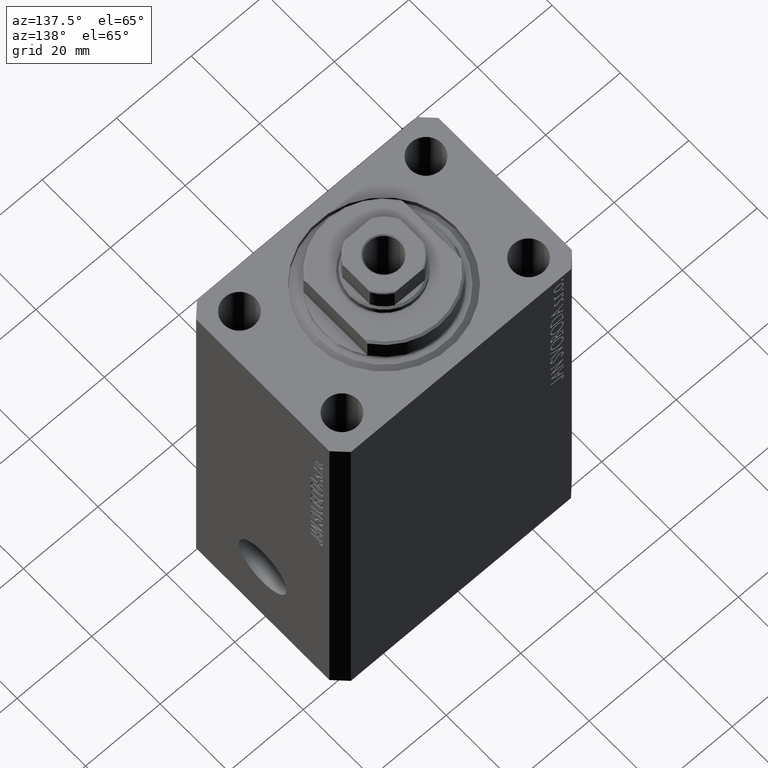
[diagram: clean part render]
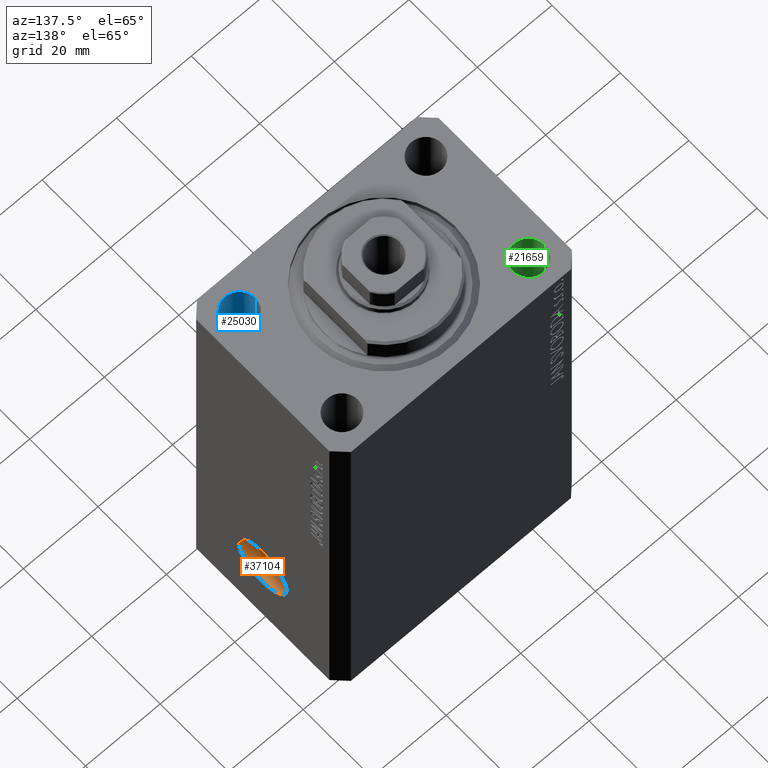
[diagram: same view with three faces highlighted in distinct colors, each labeled with its STEP entity id]
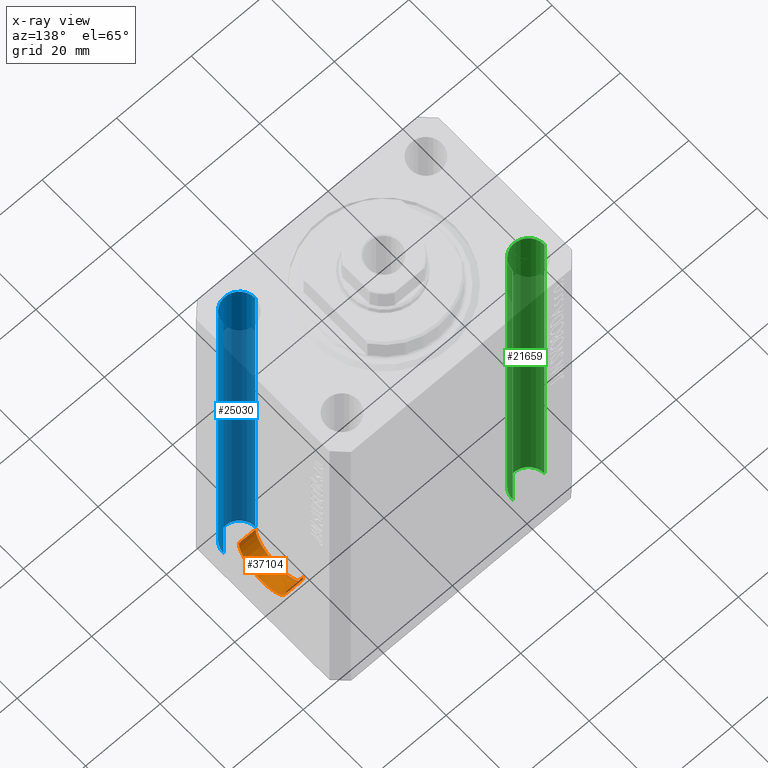
[diagram: x-ray of the same camera — body ghosted, the three highlighted faces saturated]
A machine part, auxiliary view with three faces highlighted in distinct colors.
The next image is the same camera in x-ray (body ghosted, the three faces saturated) — at least one of them is partly hidden behind the body in this view.
Their STEP definitions:

[orange] entity #37104 — the highlighted cylindrical surface (edge-blend (fillet) strip) has radius 7 mm, axis along (1, -0, 0).
#1718 = DIRECTION ( 'NONE',  ( 1.000000000000000000, -1.334402673828348976E-14, -0.000000000000000000 ) ) ;
#3364 = VERTEX_POINT ( 'NONE', #9063 ) ;
#4322 = CARTESIAN_POINT ( 'NONE',  ( 27.99999999999668177, -6.999999999999957367, -84.99999999999998579 ) ) ;
#4585 = CARTESIAN_POINT ( 'NONE',  ( 27.99999999999677414, 4.270088556253899177E-14, -84.99999999999998579 ) ) ;
#4781 = AXIS2_PLACEMENT_3D ( 'NONE', #32590, #5950, #30507 ) ;
#5566 = CYLINDRICAL_SURFACE ( 'NONE', #31020, 7.000000000000000000 ) ;
#5950 = DIRECTION ( 'NONE',  ( 1.000000000000000000, -1.334402673828349134E-14, 0.000000000000000000 ) ) ;
#8398 = DIRECTION ( 'NONE',  ( 1.338215252896394112E-14, 1.000000000000000000, 0.000000000000000000 ) ) ;
#8608 = VERTEX_POINT ( 'NONE', #29304 ) ;
#8929 = DIRECTION ( 'NONE',  ( 1.338215252896394112E-14, 1.000000000000000000, 0.000000000000000000 ) ) ;
#9063 = CARTESIAN_POINT ( 'NONE',  ( 32.49999999999668177, -7.000000000000018652, -84.99999999999998579 ) ) ;
#10432 = CARTESIAN_POINT ( 'NONE',  ( 27.99999999999668177, -6.999999999999957367, -84.99999999999998579 ) ) ;
#10849 = DIRECTION ( 'NONE',  ( 1.000000000000000000, -1.334402673828348976E-14, -0.000000000000000000 ) ) ;
#12338 = DIRECTION ( 'NONE',  ( 1.000000000000000000, -1.334402673828348976E-14, -0.000000000000000000 ) ) ;
#15777 = EDGE_CURVE ( 'NONE', #29197, #3364, #27985, .T. ) ;
#15954 = CARTESIAN_POINT ( 'NONE',  ( 27.99999999999686651, 7.000000000000042633, -84.99999999999998579 ) ) ;
#16444 = EDGE_LOOP ( 'NONE', ( #43929, #37489, #44417, #22542 ) ) ;
#20935 = EDGE_CURVE ( 'NONE', #36390, #8608, #40485, .T. ) ;
#21922 = AXIS2_PLACEMENT_3D ( 'NONE', #4585, #39268, #8398 ) ;
#22542 = ORIENTED_EDGE ( 'NONE', *, *, #20935, .F. ) ;
#22672 = CIRCLE ( 'NONE', #21922, 7.000000000000000000 ) ;
#23293 = VECTOR ( 'NONE', #10849, 1000.000000000000000 ) ;
#24060 = EDGE_CURVE ( 'NONE', #29197, #36390, #22672, .T. ) ;
#27985 = LINE ( 'NONE', #4322, #23293 ) ;
#29197 = VERTEX_POINT ( 'NONE', #10432 ) ;
#29304 = CARTESIAN_POINT ( 'NONE',  ( 32.49999999999686651, 6.999999999999983125, -84.99999999999998579 ) ) ;
#29975 = CIRCLE ( 'NONE', #4781, 7.000000000000000000 ) ;
#30507 = DIRECTION ( 'NONE',  ( 1.288651725011342390E-14, 1.000000000000000000, 0.000000000000000000 ) ) ;
#31020 = AXIS2_PLACEMENT_3D ( 'NONE', #43402, #1718, #8929 ) ;
#32590 = CARTESIAN_POINT ( 'NONE',  ( 32.49999999999677414, -1.734723475973671215E-14, -84.99999999999998579 ) ) ;
#32591 = FACE_OUTER_BOUND ( 'NONE', #16444, .T. ) ;
#32893 = EDGE_CURVE ( 'NONE', #3364, #8608, #29975, .T. ) ;
#33603 = CARTESIAN_POINT ( 'NONE',  ( 27.99999999999686651, 7.000000000000042633, -84.99999999999998579 ) ) ;
#36390 = VERTEX_POINT ( 'NONE', #33603 ) ;
#37104 = ADVANCED_FACE ( 'NONE', ( #32591 ), #5566, .F. ) ;
#37489 = ORIENTED_EDGE ( 'NONE', *, *, #15777, .T. ) ;
#39268 = DIRECTION ( 'NONE',  ( 1.000000000000000000, -1.334402673828349134E-14, 0.000000000000000000 ) ) ;
#40485 = LINE ( 'NONE', #15954, #42724 ) ;
#42724 = VECTOR ( 'NONE', #12338, 1000.000000000000000 ) ;
#43402 = CARTESIAN_POINT ( 'NONE',  ( 27.99999999999677414, 4.270088556253899177E-14, -84.99999999999998579 ) ) ;
#43929 = ORIENTED_EDGE ( 'NONE', *, *, #24060, .F. ) ;
#44417 = ORIENTED_EDGE ( 'NONE', *, *, #32893, .T. ) ;

[blue] entity #25030 — the highlighted cylindrical surface (edge-blend (fillet) strip) has radius 4.25 mm, axis along (0, 0, 1).
#117 = AXIS2_PLACEMENT_3D ( 'NONE', #26505, #19514, #26950 ) ;
#1866 = FACE_OUTER_BOUND ( 'NONE', #6645, .T. ) ;
#2092 = DIRECTION ( 'NONE',  ( -0.000000000000000000, -0.000000000000000000, 1.000000000000000000 ) ) ;
#5301 = AXIS2_PLACEMENT_3D ( 'NONE', #26610, #15588, #29339 ) ;
#6645 = EDGE_LOOP ( 'NONE', ( #26696, #7050, #12587, #19653 ) ) ;
#7050 = ORIENTED_EDGE ( 'NONE', *, *, #22516, .T. ) ;
#7159 = CARTESIAN_POINT ( 'NONE',  ( 20.75000000002367884, -15.00000000000000355, -107.0000000000000000 ) ) ;
#7918 = EDGE_CURVE ( 'NONE', #14518, #41847, #12604, .T. ) ;
#9025 = LINE ( 'NONE', #12180, #9679 ) ;
#9679 = VECTOR ( 'NONE', #43040, 1000.000000000000000 ) ;
#10296 = CARTESIAN_POINT ( 'NONE',  ( 29.24999999997631051, -15.00000000000000355, 0.000000000000000000 ) ) ;
#12180 = CARTESIAN_POINT ( 'NONE',  ( 20.75000000002367884, -15.00000000000000355, -119.0208152802854897 ) ) ;
#12587 = ORIENTED_EDGE ( 'NONE', *, *, #39446, .T. ) ;
#12604 = LINE ( 'NONE', #19357, #37478 ) ;
#14518 = VERTEX_POINT ( 'NONE', #43049 ) ;
#15588 = DIRECTION ( 'NONE',  ( -0.000000000000000000, -0.000000000000000000, -1.000000000000000000 ) ) ;
#16081 = DIRECTION ( 'NONE',  ( 1.000000000000000000, 0.000000000000000000, 0.000000000000000000 ) ) ;
#19226 = CYLINDRICAL_SURFACE ( 'NONE', #32768, 4.249999999976314058 ) ;
#19357 = CARTESIAN_POINT ( 'NONE',  ( 29.24999999997631051, -15.00000000000000355, -119.0208152802854897 ) ) ;
#19435 = EDGE_CURVE ( 'NONE', #14518, #29648, #34775, .T. ) ;
#19514 = DIRECTION ( 'NONE',  ( 0.000000000000000000, 0.000000000000000000, 1.000000000000000000 ) ) ;
#19580 = CIRCLE ( 'NONE', #117, 4.249999999976314058 ) ;
#19653 = ORIENTED_EDGE ( 'NONE', *, *, #7918, .F. ) ;
#22516 = EDGE_CURVE ( 'NONE', #29648, #23261, #9025, .T. ) ;
#22835 = CARTESIAN_POINT ( 'NONE',  ( 24.99999999999999289, -15.00000000000000355, -119.0208152802854897 ) ) ;
#23261 = VERTEX_POINT ( 'NONE', #34654 ) ;
#25030 = ADVANCED_FACE ( 'NONE', ( #1866 ), #19226, .F. ) ;
#26505 = CARTESIAN_POINT ( 'NONE',  ( 24.99999999999999289, -15.00000000000000355, 0.000000000000000000 ) ) ;
#26610 = CARTESIAN_POINT ( 'NONE',  ( 24.99999999999999289, -15.00000000000000355, -107.0000000000000000 ) ) ;
#26696 = ORIENTED_EDGE ( 'NONE', *, *, #19435, .T. ) ;
#26950 = DIRECTION ( 'NONE',  ( 1.000000000000000000, 0.000000000000000000, 0.000000000000000000 ) ) ;
#29339 = DIRECTION ( 'NONE',  ( 1.000000000000000000, 0.000000000000000000, 0.000000000000000000 ) ) ;
#29648 = VERTEX_POINT ( 'NONE', #7159 ) ;
#32768 = AXIS2_PLACEMENT_3D ( 'NONE', #22835, #2092, #16081 ) ;
#33108 = DIRECTION ( 'NONE',  ( -0.000000000000000000, -0.000000000000000000, 1.000000000000000000 ) ) ;
#34654 = CARTESIAN_POINT ( 'NONE',  ( 20.75000000002367884, -15.00000000000000355, 0.000000000000000000 ) ) ;
#34775 = CIRCLE ( 'NONE', #5301, 4.249999999976314058 ) ;
#37478 = VECTOR ( 'NONE', #33108, 1000.000000000000000 ) ;
#39446 = EDGE_CURVE ( 'NONE', #23261, #41847, #19580, .T. ) ;
#41847 = VERTEX_POINT ( 'NONE', #10296 ) ;
#43040 = DIRECTION ( 'NONE',  ( -0.000000000000000000, -0.000000000000000000, 1.000000000000000000 ) ) ;
#43049 = CARTESIAN_POINT ( 'NONE',  ( 29.24999999997631051, -15.00000000000000355, -107.0000000000000000 ) ) ;

[green] entity #21659 — the highlighted cylindrical surface (edge-blend (fillet) strip) has radius 4.25 mm, axis along (0, 0, 1).
#2432 = AXIS2_PLACEMENT_3D ( 'NONE', #5220, #12200, #29564 ) ;
#2442 = VERTEX_POINT ( 'NONE', #38695 ) ;
#2753 = CARTESIAN_POINT ( 'NONE',  ( -20.74999999997862687, 14.99999999999999645, 0.000000000000000000 ) ) ;
#5220 = CARTESIAN_POINT ( 'NONE',  ( -25.00000000000000000, 14.99999999999999645, -107.0000000000000000 ) ) ;
#5223 = EDGE_CURVE ( 'NONE', #21420, #2442, #33875, .T. ) ;
#5376 = AXIS2_PLACEMENT_3D ( 'NONE', #5806, #43863, #13009 ) ;
#5806 = CARTESIAN_POINT ( 'NONE',  ( -25.00000000000000000, 14.99999999999999645, -119.0208152802854897 ) ) ;
#6012 = AXIS2_PLACEMENT_3D ( 'NONE', #16859, #19792, #26556 ) ;
#7266 = ORIENTED_EDGE ( 'NONE', *, *, #5223, .T. ) ;
#7284 = ORIENTED_EDGE ( 'NONE', *, *, #44382, .T. ) ;
#12200 = DIRECTION ( 'NONE',  ( -0.000000000000000000, -0.000000000000000000, -1.000000000000000000 ) ) ;
#13009 = DIRECTION ( 'NONE',  ( 1.000000000000000000, 0.000000000000000000, 0.000000000000000000 ) ) ;
#13527 = CARTESIAN_POINT ( 'NONE',  ( -20.74999999997862687, 14.99999999999999645, -119.0208152802854897 ) ) ;
#13936 = CIRCLE ( 'NONE', #2432, 4.250000000021375790 ) ;
#15975 = EDGE_LOOP ( 'NONE', ( #7284, #7266, #39435, #19382 ) ) ;
#16859 = CARTESIAN_POINT ( 'NONE',  ( -25.00000000000000000, 14.99999999999999645, 0.000000000000000000 ) ) ;
#17137 = DIRECTION ( 'NONE',  ( -0.000000000000000000, -0.000000000000000000, 1.000000000000000000 ) ) ;
#19382 = ORIENTED_EDGE ( 'NONE', *, *, #40073, .F. ) ;
#19792 = DIRECTION ( 'NONE',  ( 0.000000000000000000, 0.000000000000000000, 1.000000000000000000 ) ) ;
#21420 = VERTEX_POINT ( 'NONE', #40320 ) ;
#21659 = ADVANCED_FACE ( 'NONE', ( #36658 ), #30142, .F. ) ;
#22193 = VERTEX_POINT ( 'NONE', #2753 ) ;
#23672 = LINE ( 'NONE', #13527, #32559 ) ;
#25382 = CARTESIAN_POINT ( 'NONE',  ( -20.74999999997862687, 14.99999999999999645, -107.0000000000000000 ) ) ;
#26556 = DIRECTION ( 'NONE',  ( 1.000000000000000000, 0.000000000000000000, 0.000000000000000000 ) ) ;
#29564 = DIRECTION ( 'NONE',  ( 1.000000000000000000, 0.000000000000000000, 0.000000000000000000 ) ) ;
#30142 = CYLINDRICAL_SURFACE ( 'NONE', #5376, 4.250000000021375790 ) ;
#31558 = VERTEX_POINT ( 'NONE', #25382 ) ;
#32559 = VECTOR ( 'NONE', #17137, 1000.000000000000000 ) ;
#32630 = CIRCLE ( 'NONE', #6012, 4.250000000021375790 ) ;
#33219 = DIRECTION ( 'NONE',  ( -0.000000000000000000, -0.000000000000000000, 1.000000000000000000 ) ) ;
#33875 = LINE ( 'NONE', #43784, #43153 ) ;
#36658 = FACE_OUTER_BOUND ( 'NONE', #15975, .T. ) ;
#38695 = CARTESIAN_POINT ( 'NONE',  ( -29.25000000002137668, 14.99999999999999645, 0.000000000000000000 ) ) ;
#39435 = ORIENTED_EDGE ( 'NONE', *, *, #43531, .T. ) ;
#40073 = EDGE_CURVE ( 'NONE', #31558, #22193, #23672, .T. ) ;
#40320 = CARTESIAN_POINT ( 'NONE',  ( -29.25000000002137668, 14.99999999999999645, -107.0000000000000000 ) ) ;
#43153 = VECTOR ( 'NONE', #33219, 1000.000000000000000 ) ;
#43531 = EDGE_CURVE ( 'NONE', #2442, #22193, #32630, .T. ) ;
#43784 = CARTESIAN_POINT ( 'NONE',  ( -29.25000000002137668, 14.99999999999999645, -119.0208152802854897 ) ) ;
#43863 = DIRECTION ( 'NONE',  ( -0.000000000000000000, -0.000000000000000000, 1.000000000000000000 ) ) ;
#44382 = EDGE_CURVE ( 'NONE', #31558, #21420, #13936, .T. ) ;